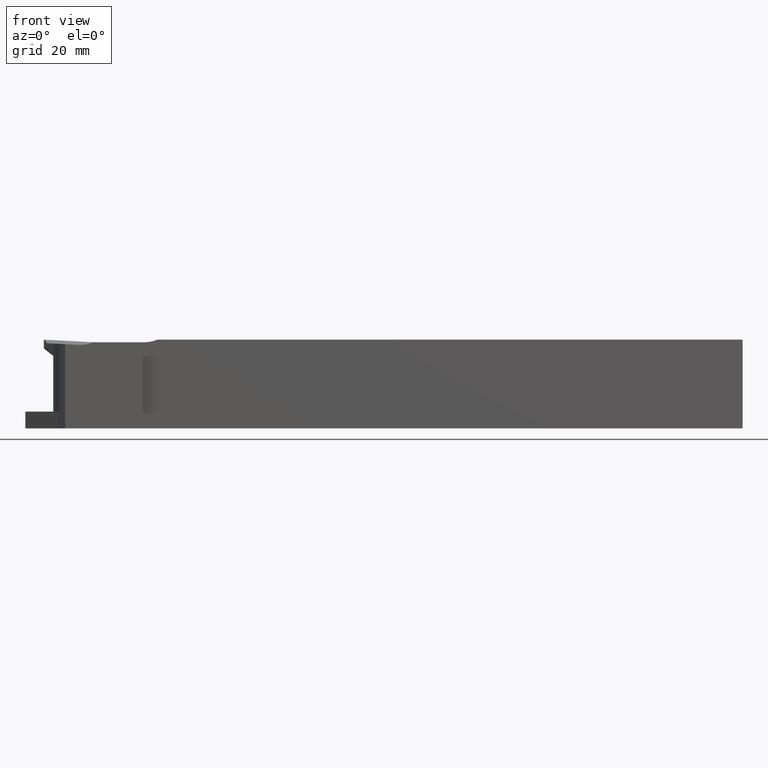
[diagram: clean part render]
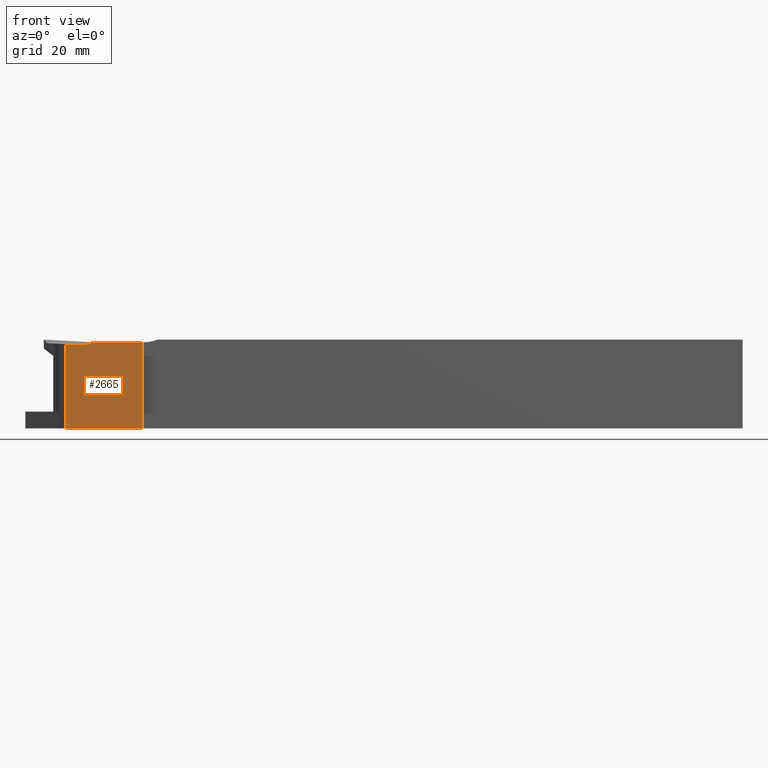
[diagram: same view with one face highlighted and labeled with its STEP entity id]
A machine part, front view. The second image highlights one B-rep face of the part: STEP entity #2665.
In plain terms, the highlighted planar face has unit normal (-0, -1, 0).
Its self-contained STEP definition (entity closure, byte-faithful):
#13 = ORIENTED_EDGE ( 'NONE', *, *, #1954, .T. ) ;
#124 = AXIS2_PLACEMENT_3D ( 'NONE', #2326, #3000, #1572 ) ;
#146 = EDGE_LOOP ( 'NONE', ( #1887, #3298, #3006, #13, #1685, #673 ) ) ;
#238 = AXIS2_PLACEMENT_3D ( 'NONE', #2028, #274, #2263 ) ;
#274 = DIRECTION ( 'NONE',  ( 0.0000000000000000000, 1.000000000000000000, 0.0000000000000000000 ) ) ;
#293 = DIRECTION ( 'NONE',  ( 1.000000000000000000, -9.800697604388743700E-017, 0.0000000000000000000 ) ) ;
#432 = VERTEX_POINT ( 'NONE', #708 ) ;
#549 = VERTEX_POINT ( 'NONE', #2277 ) ;
#595 = CARTESIAN_POINT ( 'NONE',  ( -107.0000000000000100, -10.00000000000000200, 7.471709989437755400 ) ) ;
#673 = ORIENTED_EDGE ( 'NONE', *, *, #2437, .T. ) ;
#708 = CARTESIAN_POINT ( 'NONE',  ( -116.1121971406843200, -10.00000000000000200, 7.471709989437757200 ) ) ;
#726 = DIRECTION ( 'NONE',  ( -1.000000000000000000, 0.0000000000000000000, 3.807475736519313900E-016 ) ) ;
#895 = VECTOR ( 'NONE', #293, 1000.000000000000000 ) ;
#993 = LINE ( 'NONE', #595, #1542 ) ;
#1013 = FACE_OUTER_BOUND ( 'NONE', #146, .T. ) ;
#1186 = VERTEX_POINT ( 'NONE', #2356 ) ;
#1247 = LINE ( 'NONE', #3126, #2527 ) ;
#1304 = PLANE ( 'NONE',  #124 ) ;
#1374 = CARTESIAN_POINT ( 'NONE',  ( -121.1708377349487900, -10.00000000000000000, -7.937500000000000000 ) ) ;
#1401 = VERTEX_POINT ( 'NONE', #2948 ) ;
#1542 = VECTOR ( 'NONE', #726, 1000.000000000000000 ) ;
#1572 = DIRECTION ( 'NONE',  ( 1.000000000000000000, -9.800697604388744900E-017, 0.0000000000000000000 ) ) ;
#1685 = ORIENTED_EDGE ( 'NONE', *, *, #1689, .T. ) ;
#1689 = EDGE_CURVE ( 'NONE', #2924, #432, #993, .T. ) ;
#1823 = VECTOR ( 'NONE', #1975, 1000.000000000000000 ) ;
#1887 = ORIENTED_EDGE ( 'NONE', *, *, #2342, .T. ) ;
#1921 = LINE ( 'NONE', #3099, #1823 ) ;
#1954 = EDGE_CURVE ( 'NONE', #1401, #2924, #1247, .T. ) ;
#1975 = DIRECTION ( 'NONE',  ( -0.9986295347545739400, -0.0000000000000000000, 0.05233595624294330700 ) ) ;
#2028 = CARTESIAN_POINT ( 'NONE',  ( -118.5012015306178600, -10.00000000000000200, 13.08443286028022500 ) ) ;
#2047 = EDGE_CURVE ( 'NONE', #549, #2837, #2684, .T. ) ;
#2079 = VECTOR ( 'NONE', #3166, 1000.000000000000000 ) ;
#2115 = CIRCLE ( 'NONE', #238, 6.099999999999994300 ) ;
#2263 = DIRECTION ( 'NONE',  ( 0.0000000000000000000, 0.0000000000000000000, 1.000000000000000000 ) ) ;
#2277 = CARTESIAN_POINT ( 'NONE',  ( -121.1708377349487900, -10.00000000000000200, 7.115971254655495000 ) ) ;
#2292 = LINE ( 'NONE', #2954, #895 ) ;
#2326 = CARTESIAN_POINT ( 'NONE',  ( -125.0000000000000000, -10.00000000000000000, -7.937500000000000000 ) ) ;
#2342 = EDGE_CURVE ( 'NONE', #1186, #549, #1921, .T. ) ;
#2356 = CARTESIAN_POINT ( 'NONE',  ( -118.8204508636998300, -10.00000000000000200, 6.992792698277329000 ) ) ;
#2425 = DIRECTION ( 'NONE',  ( 0.0000000000000000000, 0.0000000000000000000, 1.000000000000000000 ) ) ;
#2437 = EDGE_CURVE ( 'NONE', #432, #1186, #2115, .T. ) ;
#2511 = EDGE_CURVE ( 'NONE', #2837, #1401, #2292, .T. ) ;
#2527 = VECTOR ( 'NONE', #2425, 1000.000000000000000 ) ;
#2665 = ADVANCED_FACE ( 'NONE', ( #1013 ), #1304, .T. ) ;
#2684 = LINE ( 'NONE', #3142, #2079 ) ;
#2837 = VERTEX_POINT ( 'NONE', #1374 ) ;
#2894 = CARTESIAN_POINT ( 'NONE',  ( -107.3000000000000100, -10.00000000000000200, 7.471709989437755400 ) ) ;
#2924 = VERTEX_POINT ( 'NONE', #2894 ) ;
#2948 = CARTESIAN_POINT ( 'NONE',  ( -107.3000000000000100, -10.00000000000000200, -7.937500000000000000 ) ) ;
#2954 = CARTESIAN_POINT ( 'NONE',  ( -125.0000000000000000, -10.00000000000000000, -7.937500000000000000 ) ) ;
#3000 = DIRECTION ( 'NONE',  ( -9.800697604388744900E-017, -1.000000000000000000, 0.0000000000000000000 ) ) ;
#3006 = ORIENTED_EDGE ( 'NONE', *, *, #2511, .T. ) ;
#3099 = CARTESIAN_POINT ( 'NONE',  ( -125.0000000000000000, -10.00000000000000200, 7.316649145481252800 ) ) ;
#3126 = CARTESIAN_POINT ( 'NONE',  ( -107.3000000000000100, -10.00000000000000200, -7.937500000000000000 ) ) ;
#3142 = CARTESIAN_POINT ( 'NONE',  ( -121.1708377349487900, -10.00000000000000000, -7.937500000000000000 ) ) ;
#3166 = DIRECTION ( 'NONE',  ( 0.0000000000000000000, 0.0000000000000000000, -1.000000000000000000 ) ) ;
#3298 = ORIENTED_EDGE ( 'NONE', *, *, #2047, .T. ) ;